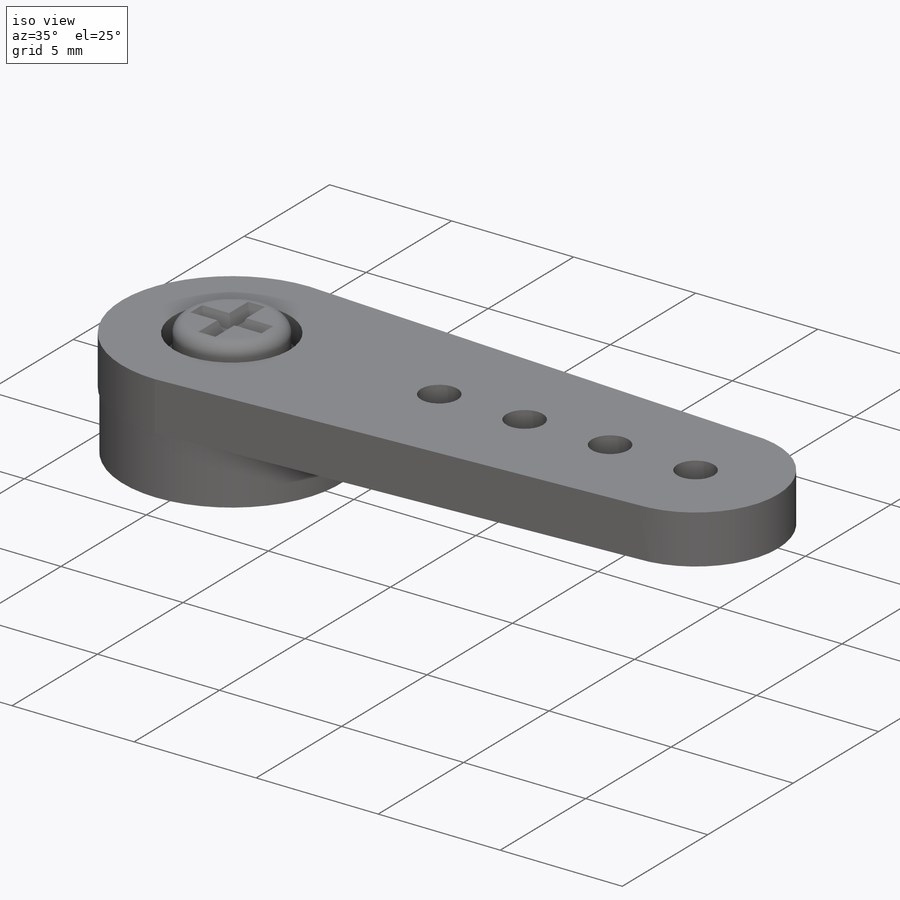
[diagram: iso view]
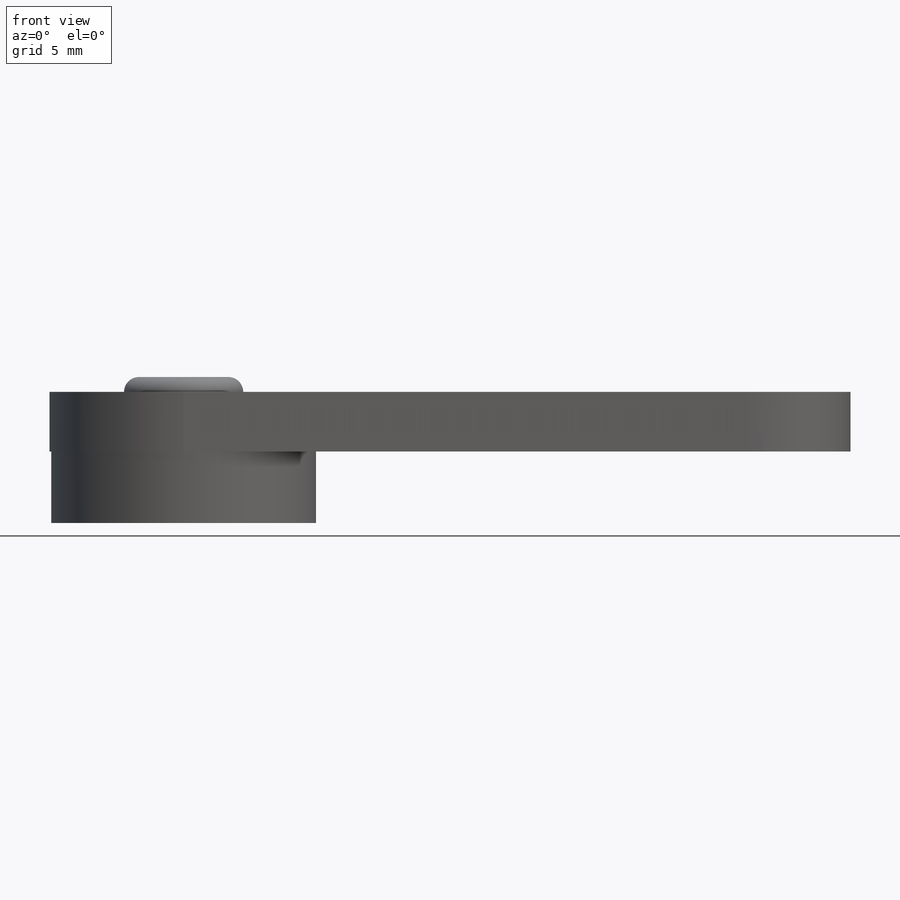
[diagram: front view]
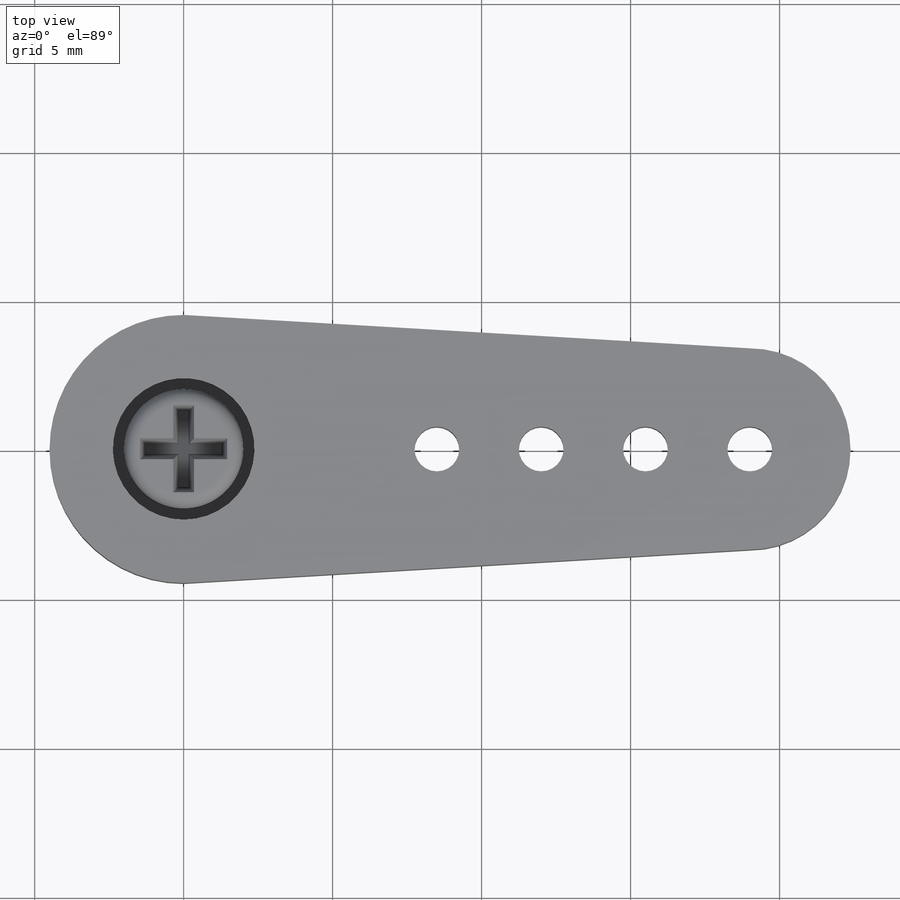
[diagram: top view]
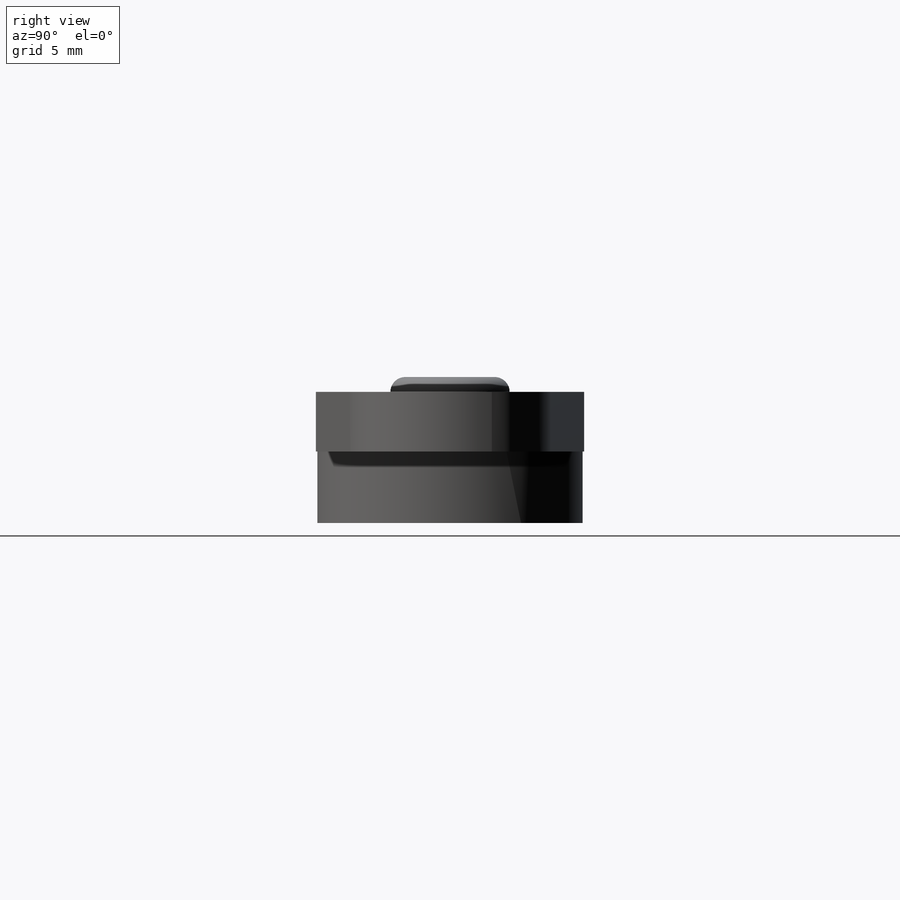
[diagram: right view]
SOLIDWORKS PART (.sldprt)
format: sldprt  version: not decoded by parser v0  size: 415,232 bytes
history: native  units: mm
features: sketch x6, plane x3, extrude x3, cut_extrude x3, material x1, fillet x1 (+10 scaffold rows collapsed)
feature tree (27):
  scaffold x10  (default folders/planes/origin — collapsed)
  material  "Material <not specified>"
  plane  "Frontale"
  plane  "Superiore"
  plane  "Destro"
  sketch  "Sketch1"  dims[c1.D1=4.75mm c1.D2=9.0mm c1.D4=1.5mm c1.D6=2.0mm c1.D7=8.9mm c1.D3=19.0mm c2.D7=3.5mm c2.D5=4.0]
  extrude  "Boss-Extrude1"  Depth=4.4mm
  extrude  "Boss-Extrude2"  [1 undecoded]
  sketch  "Sketch1<3>"  dims[D19=2.4mm]
  cut_extrude  "Cut-Extrude1"  [1 undecoded]
  sketch  "Sketch1<4>"  dims[D1=1.0mm]
  sketch  "Sketch2"  dims[D1=4.0mm]
  extrude  "Boss-Extrude3"  Depth=1.5mm
  fillet  "Fillet1"  Radius=0.5mm
  sketch  "Sketch3"  dims[D1=0.7mm D2=0.7mm]
  cut_extrude  "Cut-Extrude2"  Depth=0.5mm
  sketch  "Sketch4"  dims[D1=5.81mm]
  cut_extrude  "Cut-Extrude3"  Depth=3mm
decode coverage: 11 of 13 modeling features carry decoded parameters
note: 2 parameter values undecoded
note: suppression state not decoded; provenance and decode notes live in map.json
